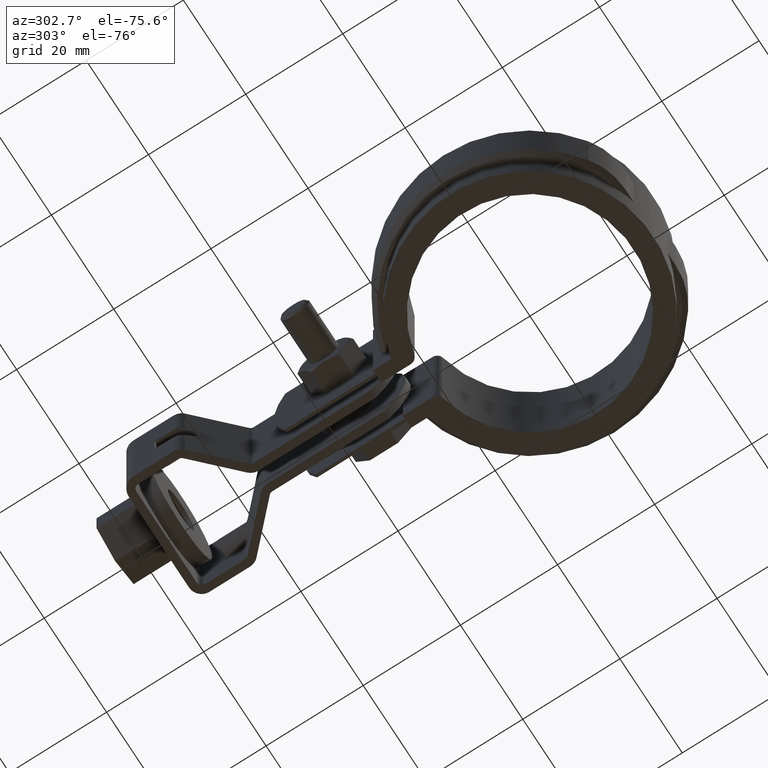
[diagram: clean part render]
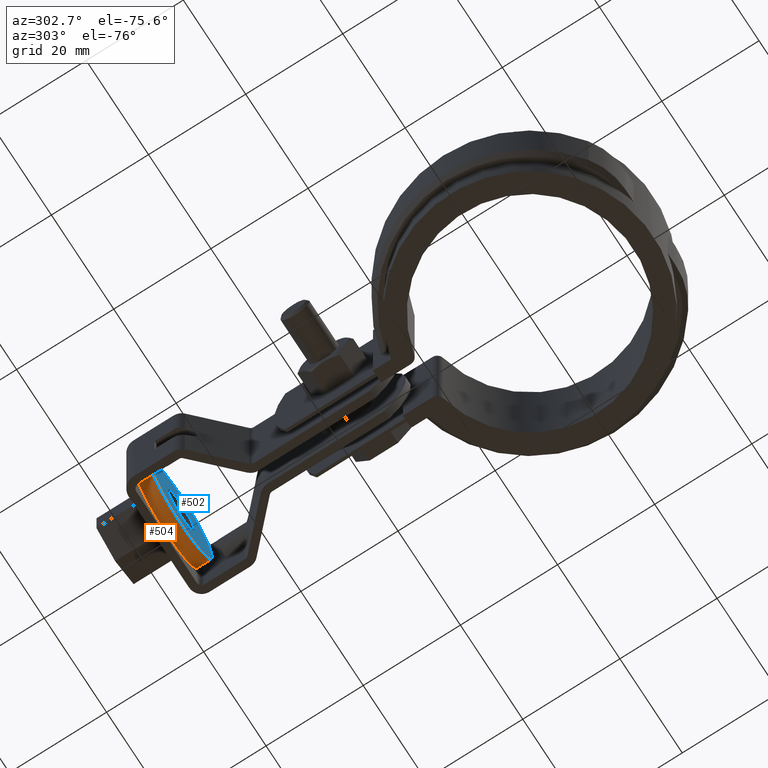
[diagram: same view with the hole feature highlighted: cylindrical wall and planar end face, labeled with their STEP entity ids]
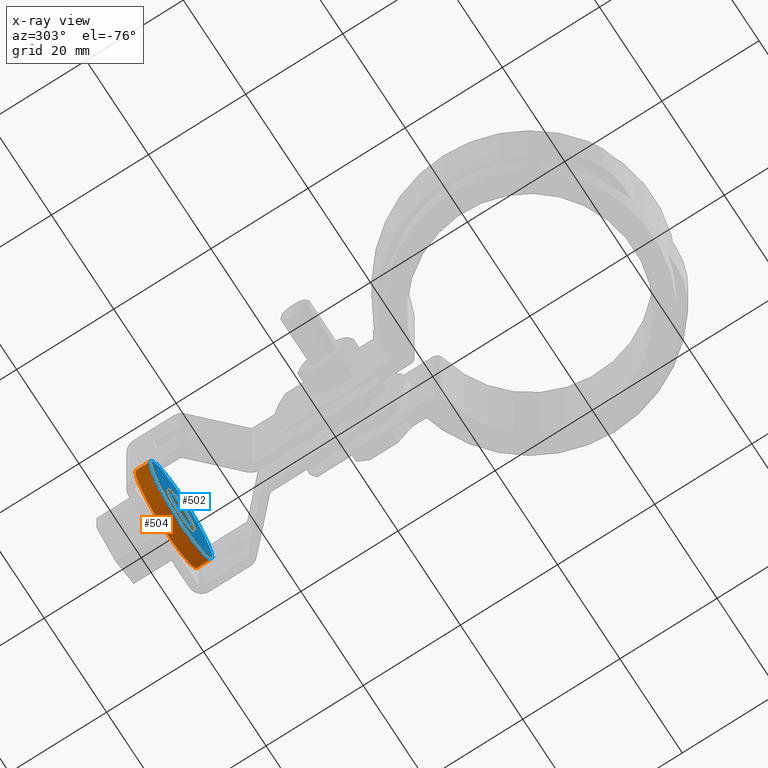
[diagram: x-ray of the same camera — body ghosted, the hole faces saturated]
A machine part, auxiliary view. The highlighted faces form one hole feature of diameter 20 mm: the cylindrical wall (entity #504, orange) and its adjacent planar end face (entity #502, blue) — they share a circular edge in the B-rep.
The next image is the same camera in x-ray (body ghosted, the hole faces saturated) — the bore reads through the body.
Wall:
#504 = ADVANCED_FACE( '', ( #958, #959 ), #960, .T. );
#958 = FACE_OUTER_BOUND( '', #1844, .T. );
#959 = FACE_OUTER_BOUND( '', #1845, .T. );
#960 = CYLINDRICAL_SURFACE( '', #1846, 10.0000000000000 );
#1844 = EDGE_LOOP( '', ( #4900 ) );
#1845 = EDGE_LOOP( '', ( #4901 ) );
#1846 = AXIS2_PLACEMENT_3D( '', #4902, #4903, #4904 );
#4900 = ORIENTED_EDGE( '', *, *, #5743, .T. );
#4901 = ORIENTED_EDGE( '', *, *, #5732, .F. );
#4902 = CARTESIAN_POINT( '', ( 4.31973178515162E-013, 71.8025110200043, -12.5000000000246 ) );
#4903 = DIRECTION( '', ( 9.21184560650170E-016, -1.00000000000000, -1.26121335597421E-013 ) );
#4904 = DIRECTION( '', ( 1.00000000000000, 9.21184560649447E-016, 5.73783117496114E-015 ) );
#5732 = EDGE_CURVE( '', #6739, #6739, #6740, .T. );
#5743 = EDGE_CURVE( '', #6758, #6758, #6759, .T. );
#6739 = VERTEX_POINT( '', #10569 );
#6740 = CIRCLE( '', #10570, 10.0000000000000 );
#6758 = VERTEX_POINT( '', #10597 );
#6759 = CIRCLE( '', #10598, 10.0000000000000 );
#10569 = CARTESIAN_POINT( '', ( 10.0000000000004, 74.8025110200043, -12.5000000000242 ) );
#10570 = AXIS2_PLACEMENT_3D( '', #11485, #11486, #11487 );
#10597 = CARTESIAN_POINT( '', ( 10.0000000000004, 71.8025110200043, -12.5000000000246 ) );
#10598 = AXIS2_PLACEMENT_3D( '', #11500, #11501, #11502 );
#11485 = CARTESIAN_POINT( '', ( 4.29209624833212E-013, 74.8025110200043, -12.5000000000243 ) );
#11486 = DIRECTION( '', ( -9.21184560650170E-016, 1.00000000000000, 1.26121335597421E-013 ) );
#11487 = DIRECTION( '', ( 1.00000000000000, 9.21184560649447E-016, 5.73783117496114E-015 ) );
#11500 = CARTESIAN_POINT( '', ( 4.31973178515162E-013, 71.8025110200043, -12.5000000000246 ) );
#11501 = DIRECTION( '', ( -9.21184560650170E-016, 1.00000000000000, 1.26121335597421E-013 ) );
#11502 = DIRECTION( '', ( 1.00000000000000, 9.21184560649447E-016, 5.73783117496114E-015 ) );
End face:
#502 = ADVANCED_FACE( '', ( #952, #953 ), #954, .F. );
#952 = FACE_BOUND( '', #1838, .T. );
#953 = FACE_OUTER_BOUND( '', #1839, .T. );
#954 = PLANE( '', #1840 );
#1838 = EDGE_LOOP( '', ( #4890 ) );
#1839 = EDGE_LOOP( '', ( #4891 ) );
#1840 = AXIS2_PLACEMENT_3D( '', #4892, #4893, #4894 );
#4890 = ORIENTED_EDGE( '', *, *, #5742, .T. );
#4891 = ORIENTED_EDGE( '', *, *, #5743, .F. );
#4892 = CARTESIAN_POINT( '', ( 4.31973178515162E-013, 71.8025110200043, -12.5000000000246 ) );
#4893 = DIRECTION( '', ( -9.21184560650171E-016, 1.00000000000000, 1.26121335597421E-013 ) );
#4894 = DIRECTION( '', ( 1.00000000000000, 9.21184560649447E-016, 5.73783117496114E-015 ) );
#5742 = EDGE_CURVE( '', #6756, #6756, #6757, .T. );
#5743 = EDGE_CURVE( '', #6758, #6758, #6759, .T. );
#6756 = VERTEX_POINT( '', #10595 );
#6757 = CIRCLE( '', #10596, 4.25000000000000 );
#6758 = VERTEX_POINT( '', #10597 );
#6759 = CIRCLE( '', #10598, 10.0000000000000 );
#10595 = CARTESIAN_POINT( '', ( 4.25000000000043, 71.8025110200043, -12.5000000000246 ) );
#10596 = AXIS2_PLACEMENT_3D( '', #11497, #11498, #11499 );
#10597 = CARTESIAN_POINT( '', ( 10.0000000000004, 71.8025110200043, -12.5000000000246 ) );
#10598 = AXIS2_PLACEMENT_3D( '', #11500, #11501, #11502 );
#11497 = CARTESIAN_POINT( '', ( 4.29804774170191E-013, 71.8025110200043, -12.5000000000246 ) );
#11498 = DIRECTION( '', ( -9.21184560650171E-016, 1.00000000000000, 1.26121335597421E-013 ) );
#11499 = DIRECTION( '', ( 1.00000000000000, 9.21184560649447E-016, 5.73783117496114E-015 ) );
#11500 = CARTESIAN_POINT( '', ( 4.31973178515162E-013, 71.8025110200043, -12.5000000000246 ) );
#11501 = DIRECTION( '', ( -9.21184560650170E-016, 1.00000000000000, 1.26121335597421E-013 ) );
#11502 = DIRECTION( '', ( 1.00000000000000, 9.21184560649447E-016, 5.73783117496114E-015 ) );